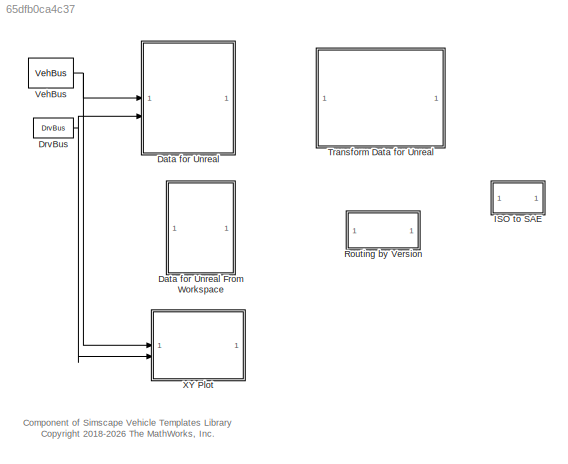
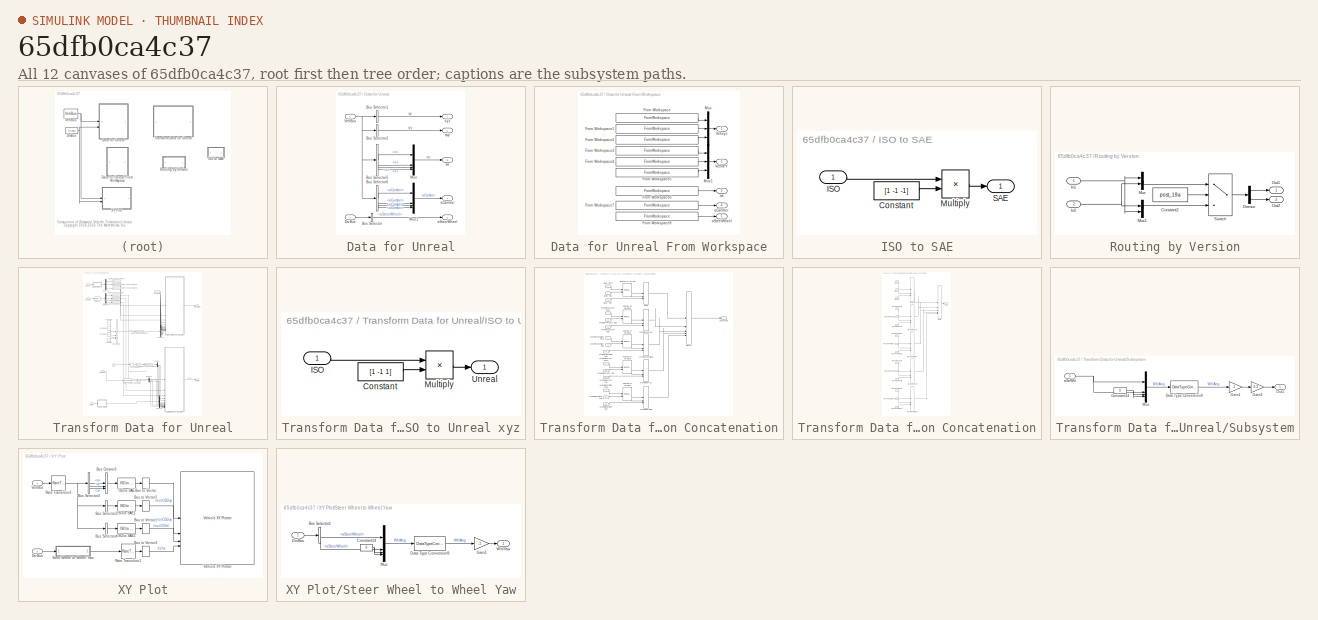
[diagram: thumbnail index - all 12 canvases of the model, root first then tree order]
MODEL slx_65dfb0ca4c37
KIND library
CONFIG SolverName = VariableStepAuto
BLOCK [SubSystem] Data for Unreal
BLOCK [SubSystem] Data for Unreal From Workspace
BLOCK [FromWorkspace] Data for Unreal From Workspace/From Workspace
  VariableName = unreal_data.Values.xyz.x
BLOCK [FromWorkspace] Data for Unreal From Workspace/From Workspace1
  VariableName = unreal_data.Values.xyz.y
BLOCK [FromWorkspace] Data for Unreal From Workspace/From Workspace2
  VariableName = unreal_data.Values.xyz.z
BLOCK [FromWorkspace] Data for Unreal From Workspace/From Workspace3
  VariableName = unreal_data.Values.rpy.aRoll
BLOCK [FromWorkspace] Data for Unreal From Workspace/From Workspace4
  VariableName = unreal_data.Values.rpy.aPitch
BLOCK [FromWorkspace] Data for Unreal From Workspace/From Workspace5
  VariableName = [unreal_data.Values.rpy.aYaw.Time unwrap(unreal_data.Values.rpy.aYaw.Data)]
BLOCK [FromWorkspace] Data for Unreal From Workspace/From Workspace6
  VariableName = unreal_data.Values.ws
BLOCK [FromWorkspace] Data for Unreal From Workspace/From Workspace7
  VariableName = unreal_data.Values.aCamber
BLOCK [FromWorkspace] Data for Unreal From Workspace/From Workspace8
  VariableName = unreal_data.Values.aSteerWheel
BLOCK [Mux] Data for Unreal From Workspace/Mux
  DisplayOption = bar
  Inputs = 3
BLOCK [Mux] Data for Unreal From Workspace/Mux1
  DisplayOption = bar
  Inputs = 3
BLOCK [Outport] Data for Unreal From Workspace/VehRPY
  Port = 2
  VectorParamsAs1DForOutWhenUnconnected = off
BLOCK [Outport] Data for Unreal From Workspace/Vehxyz
  VectorParamsAs1DForOutWhenUnconnected = off
BLOCK [Outport] Data for Unreal From Workspace/aCamber
  Port = 4
  VectorParamsAs1DForOutWhenUnconnected = off
BLOCK [Outport] Data for Unreal From Workspace/aSteerWheel
  Port = 5
  VectorParamsAs1DForOutWhenUnconnected = off
BLOCK [Outport] Data for Unreal From Workspace/ws
  Port = 3
  VectorParamsAs1DForOutWhenUnconnected = off
BLOCK [BusSelector] Data for Unreal/Bus Selector
  OutputSignals = aSteerWheel
BLOCK [BusSelector] Data for Unreal/Bus Selector1
  OutputAsBus = on
  OutputSignals = World.x,World.y,World.z
BLOCK [BusSelector] Data for Unreal/Bus Selector2
  OutputAsBus = on
  OutputSignals = World.aRoll,World.aPitch,World.aYaw
BLOCK [BusSelector] Data for Unreal/Bus Selector5
  OutputSignals = Chassis.WhlL1.n,Chassis.WhlR1.n,Chassis.WhlL2.n,Chassis.WhlR2.n
BLOCK [BusSelector] Data for Unreal/Bus Selector6
  OutputSignals = Chassis.WhlL1.aCamber,Chassis.WhlR1.aCamber,Chassis.WhlL2.aCamber,Chassis.WhlR2.aCamber
BLOCK [Inport] Data for Unreal/DrvBus
  Port = 2
BLOCK [Mux] Data for Unreal/Mux
  DisplayOption = bar
BLOCK [Mux] Data for Unreal/Mux1
  DisplayOption = bar
BLOCK [Inport] Data for Unreal/VehBus
BLOCK [Outport] Data for Unreal/aCamber
  Port = 4
  VectorParamsAs1DForOutWhenUnconnected = off
BLOCK [Outport] Data for Unreal/aSteerWheel
  Port = 5
  VectorParamsAs1DForOutWhenUnconnected = off
BLOCK [Outport] Data for Unreal/rpy
  Port = 2
  VectorParamsAs1DForOutWhenUnconnected = off
BLOCK [Outport] Data for Unreal/ws
  Port = 3
  VectorParamsAs1DForOutWhenUnconnected = off
BLOCK [Outport] Data for Unreal/xyz
  VectorParamsAs1DForOutWhenUnconnected = off
BLOCK [Reference] DrvBus  REF=sm_car_lib/Inputs/DrvBus  (lib defined in slx_05426f0848b6, slx_5dc2867fb1c9)
  SourceBlock = sm_car_lib/Inputs/DrvBus
  SourceType = SubSystem
BLOCK [SubSystem] ISO to SAE
BLOCK [Constant] ISO to SAE/Constant
  Value = [1 -1 -1]
BLOCK [Inport] ISO to SAE/ISO
BLOCK [Product] ISO to SAE/Multiply
BLOCK [Outport] ISO to SAE/SAE
  VectorParamsAs1DForOutWhenUnconnected = off
BLOCK [SubSystem] Routing by Version
BLOCK [Constant] Routing by Version/Constant2
  Value = post_19a
BLOCK [Demux] Routing by Version/Demux
  Outputs = 2
BLOCK [Inport] Routing by Version/In1
BLOCK [Inport] Routing by Version/In2
  Port = 2
BLOCK [Mux] Routing by Version/Mux
  DisplayOption = bar
  Inputs = 2
BLOCK [Mux] Routing by Version/Mux1
  DisplayOption = bar
  Inputs = 2
BLOCK [Outport] Routing by Version/Out1
  VectorParamsAs1DForOutWhenUnconnected = off
BLOCK [Outport] Routing by Version/Out2
  Port = 2
  VectorParamsAs1DForOutWhenUnconnected = off
BLOCK [Switch] Routing by Version/Switch
  Criteria = u2 > Threshold
  InputSameDT = off
  SaturateOnIntegerOverflow = off
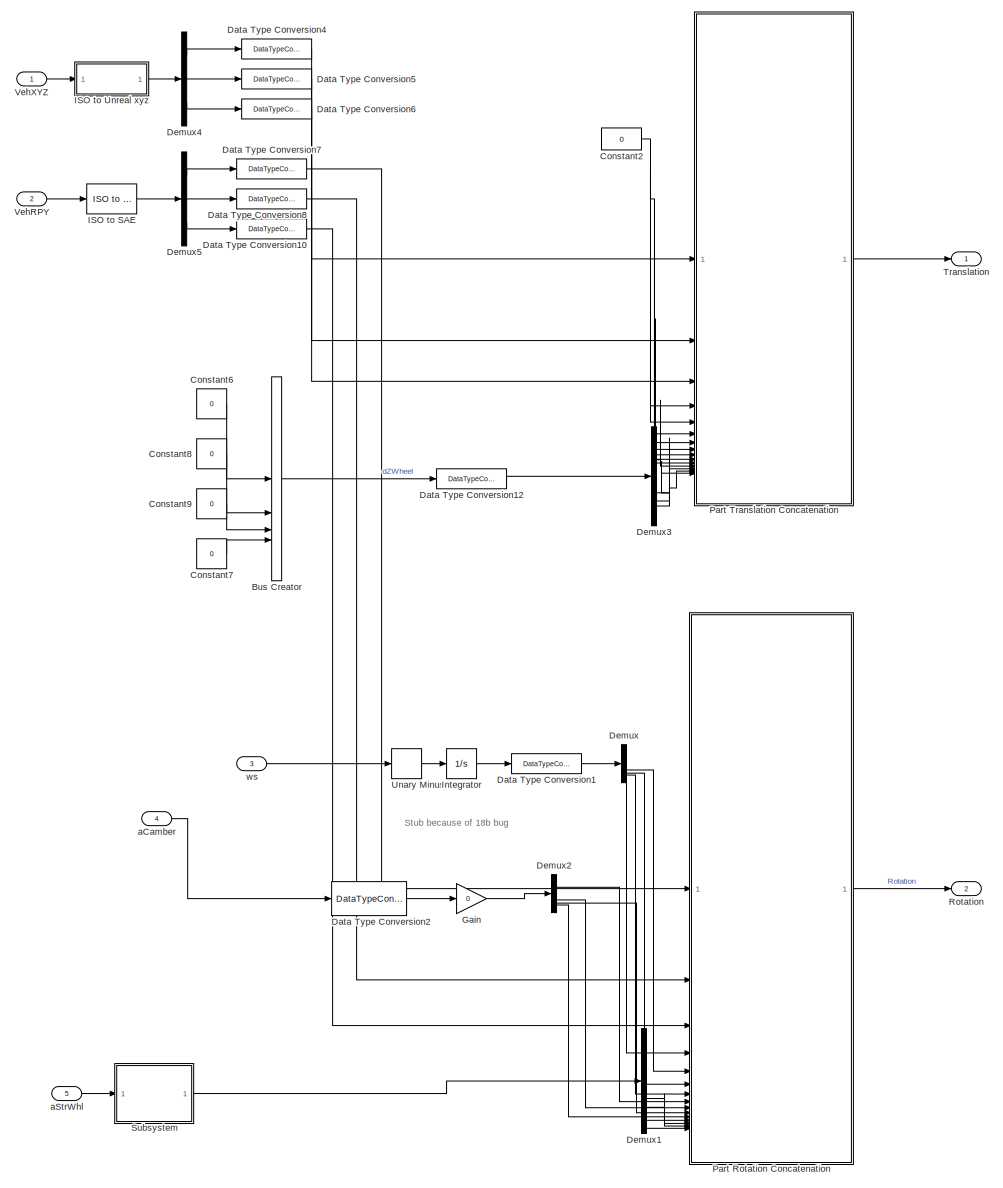
[diagram: Transform Data for Unreal - part 1/1, most of the canvas]
BLOCK [SubSystem] Transform Data for Unreal
BLOCK [BusCreator] Transform Data for Unreal/Bus Creator
  DisplayOption = bar
  InheritFromInputs = on
  Inputs = 4
BLOCK [Constant] Transform Data for Unreal/Constant2
  OutDataTypeStr = single
  Value = 0
BLOCK [Constant] Transform Data for Unreal/Constant6
  Value = 0
BLOCK [Constant] Transform Data for Unreal/Constant7
  Value = 0
BLOCK [Constant] Transform Data for Unreal/Constant8
  Value = 0
BLOCK [Constant] Transform Data for Unreal/Constant9
  Value = 0
BLOCK [DataTypeConversion] Transform Data for Unreal/Data Type Conversion1
  OutDataTypeStr = single
  RndMeth = Floor
  SaturateOnIntegerOverflow = off
BLOCK [DataTypeConversion] Transform Data for Unreal/Data Type Conversion10
  OutDataTypeStr = single
  RndMeth = Floor
  SaturateOnIntegerOverflow = off
BLOCK [DataTypeConversion] Transform Data for Unreal/Data Type Conversion12
  OutDataTypeStr = single
  RndMeth = Floor
  SaturateOnIntegerOverflow = off
BLOCK [DataTypeConversion] Transform Data for Unreal/Data Type Conversion2
  OutDataTypeStr = single
  RndMeth = Floor
  SaturateOnIntegerOverflow = off
BLOCK [DataTypeConversion] Transform Data for Unreal/Data Type Conversion4
  OutDataTypeStr = single
  RndMeth = Floor
  SaturateOnIntegerOverflow = off
BLOCK [DataTypeConversion] Transform Data for Unreal/Data Type Conversion5
  OutDataTypeStr = single
  RndMeth = Floor
  SaturateOnIntegerOverflow = off
BLOCK [DataTypeConversion] Transform Data for Unreal/Data Type Conversion6
  OutDataTypeStr = single
  RndMeth = Floor
  SaturateOnIntegerOverflow = off
BLOCK [DataTypeConversion] Transform Data for Unreal/Data Type Conversion7
  OutDataTypeStr = single
  RndMeth = Floor
  SaturateOnIntegerOverflow = off
BLOCK [DataTypeConversion] Transform Data for Unreal/Data Type Conversion8
  OutDataTypeStr = single
  RndMeth = Floor
  SaturateOnIntegerOverflow = off
BLOCK [Demux] Transform Data for Unreal/Demux
BLOCK [Demux] Transform Data for Unreal/Demux1
BLOCK [Demux] Transform Data for Unreal/Demux2
BLOCK [Demux] Transform Data for Unreal/Demux3
BLOCK [Demux] Transform Data for Unreal/Demux4
  Outputs = 3
BLOCK [Demux] Transform Data for Unreal/Demux5
  Outputs = 3
BLOCK [Gain] Transform Data for Unreal/Gain
  Gain = 0
BLOCK [Reference] Transform Data for Unreal/ISO to SAE   REF=$bdroot/ISO to SAE
  SourceBlock = $bdroot/ISO to SAE
  SourceType = SubSystem
BLOCK [SubSystem] Transform Data for Unreal/ISO to Unreal xyz
BLOCK [Constant] Transform Data for Unreal/ISO to Unreal xyz/Constant
  Value = [1 -1 1]
BLOCK [Inport] Transform Data for Unreal/ISO to Unreal xyz/ISO
BLOCK [Product] Transform Data for Unreal/ISO to Unreal xyz/Multiply
BLOCK [Outport] Transform Data for Unreal/ISO to Unreal xyz/Unreal
  VectorParamsAs1DForOutWhenUnconnected = off
BLOCK [Integrator] Transform Data for Unreal/Integrator
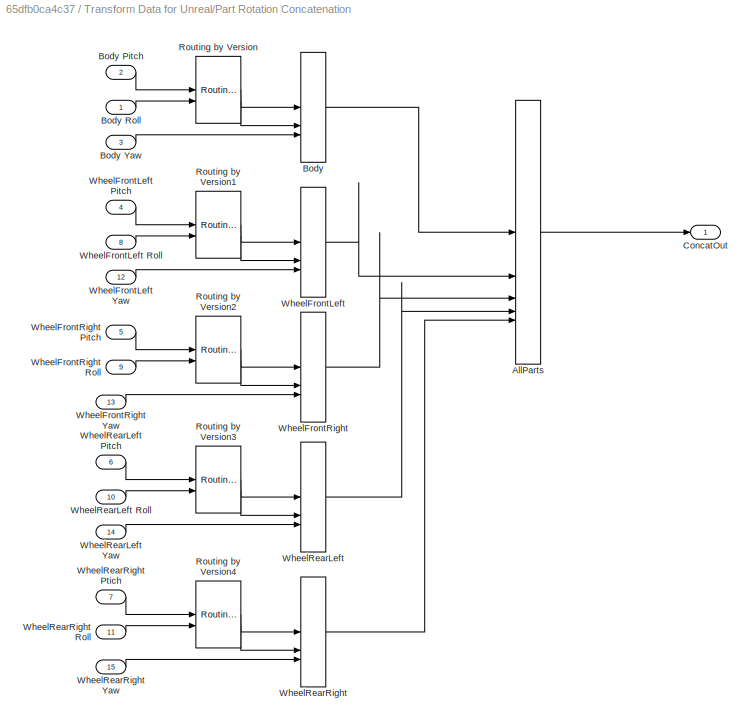
BLOCK [SubSystem] Transform Data for Unreal/Part Rotation Concatenation
BLOCK [Concatenate] Transform Data for Unreal/Part Rotation Concatenation/AllParts
  Mode = Multidimensional array
  NumInputs = 5
BLOCK [Concatenate] Transform Data for Unreal/Part Rotation Concatenation/Body
  ConcatenateDimension = 2
  Mode = Multidimensional array
  NumInputs = 3
BLOCK [Inport] Transform Data for Unreal/Part Rotation Concatenation/Body Pitch
  Port = 2
BLOCK [Inport] Transform Data for Unreal/Part Rotation Concatenation/Body Roll
BLOCK [Inport] Transform Data for Unreal/Part Rotation Concatenation/Body Yaw
  Port = 3
BLOCK [Outport] Transform Data for Unreal/Part Rotation Concatenation/ConcatOut
  VectorParamsAs1DForOutWhenUnconnected = off
BLOCK [Reference] Transform Data for Unreal/Part Rotation Concatenation/Routing by Version  REF=$bdroot/Routing by Version
  SourceBlock = $bdroot/Routing by Version
  SourceType = Swap Inputs based on MATLAB Release
BLOCK [Reference] Transform Data for Unreal/Part Rotation Concatenation/Routing by Version1  REF=$bdroot/Routing by Version
  SourceBlock = $bdroot/Routing by Version
  SourceType = Swap Inputs based on MATLAB Release
BLOCK [Reference] Transform Data for Unreal/Part Rotation Concatenation/Routing by Version2  REF=$bdroot/Routing by Version
  SourceBlock = $bdroot/Routing by Version
  SourceType = Swap Inputs based on MATLAB Release
BLOCK [Reference] Transform Data for Unreal/Part Rotation Concatenation/Routing by Version3  REF=$bdroot/Routing by Version
  SourceBlock = $bdroot/Routing by Version
  SourceType = Swap Inputs based on MATLAB Release
BLOCK [Reference] Transform Data for Unreal/Part Rotation Concatenation/Routing by Version4  REF=$bdroot/Routing by Version
  SourceBlock = $bdroot/Routing by Version
  SourceType = Swap Inputs based on MATLAB Release
BLOCK [Concatenate] Transform Data for Unreal/Part Rotation Concatenation/WheelFrontLeft
  ConcatenateDimension = 2
  Mode = Multidimensional array
  NumInputs = 3
BLOCK [Inport] Transform Data for Unreal/Part Rotation Concatenation/WheelFrontLeft Pitch
  Port = 4
BLOCK [Inport] Transform Data for Unreal/Part Rotation Concatenation/WheelFrontLeft Roll
  Port = 8
BLOCK [Inport] Transform Data for Unreal/Part Rotation Concatenation/WheelFrontLeft Yaw
  Port = 12
BLOCK [Concatenate] Transform Data for Unreal/Part Rotation Concatenation/WheelFrontRight
  ConcatenateDimension = 2
  Mode = Multidimensional array
  NumInputs = 3
BLOCK [Inport] Transform Data for Unreal/Part Rotation Concatenation/WheelFrontRight Pitch
  Port = 5
BLOCK [Inport] Transform Data for Unreal/Part Rotation Concatenation/WheelFrontRight Roll
  Port = 9
BLOCK [Inport] Transform Data for Unreal/Part Rotation Concatenation/WheelFrontRight Yaw
  Port = 13
BLOCK [Concatenate] Transform Data for Unreal/Part Rotation Concatenation/WheelRearLeft
  ConcatenateDimension = 2
  Mode = Multidimensional array
  NumInputs = 3
BLOCK [Inport] Transform Data for Unreal/Part Rotation Concatenation/WheelRearLeft Pitch
  Port = 6
BLOCK [Inport] Transform Data for Unreal/Part Rotation Concatenation/WheelRearLeft Roll
  Port = 10
BLOCK [Inport] Transform Data for Unreal/Part Rotation Concatenation/WheelRearLeft Yaw
  Port = 14
BLOCK [Concatenate] Transform Data for Unreal/Part Rotation Concatenation/WheelRearRight
  ConcatenateDimension = 2
  Mode = Multidimensional array
  NumInputs = 3
BLOCK [Inport] Transform Data for Unreal/Part Rotation Concatenation/WheelRearRight Ptich
  Port = 7
BLOCK [Inport] Transform Data for Unreal/Part Rotation Concatenation/WheelRearRight Roll
  Port = 11
BLOCK [Inport] Transform Data for Unreal/Part Rotation Concatenation/WheelRearRight Yaw
  Port = 15
BLOCK [SubSystem] Transform Data for Unreal/Part Translation Concatenation
BLOCK [Concatenate] Transform Data for Unreal/Part Translation Concatenation/AllParts
  Mode = Multidimensional array
  NumInputs = 5
BLOCK [Concatenate] Transform Data for Unreal/Part Translation Concatenation/Body
  ConcatenateDimension = 2
  Mode = Multidimensional array
  NumInputs = 3
BLOCK [Inport] Transform Data for Unreal/Part Translation Concatenation/BodyX
BLOCK [Inport] Transform Data for Unreal/Part Translation Concatenation/BodyY
  Port = 2
BLOCK [Inport] Transform Data for Unreal/Part Translation Concatenation/BodyZ
  Port = 3
BLOCK [Outport] Transform Data for Unreal/Part Translation Concatenation/Out1
  VectorParamsAs1DForOutWhenUnconnected = off
BLOCK [Concatenate] Transform Data for Unreal/Part Translation Concatenation/WheelFrontLeft
  ConcatenateDimension = 2
  Mode = Multidimensional array
  NumInputs = 3
BLOCK [Inport] Transform Data for Unreal/Part Translation Concatenation/WheelFrontLeftX
  Port = 4
BLOCK [Inport] Transform Data for Unreal/Part Translation Concatenation/WheelFrontLeftY
  Port = 8
BLOCK [Inport] Transform Data for Unreal/Part Translation Concatenation/WheelFrontLeftZ
  Port = 12
BLOCK [Concatenate] Transform Data for Unreal/Part Translation Concatenation/WheelFrontRight
  ConcatenateDimension = 2
  Mode = Multidimensional array
  NumInputs = 3
BLOCK [Inport] Transform Data for Unreal/Part Translation Concatenation/WheelFrontRightX
  Port = 5
BLOCK [Inport] Transform Data for Unreal/Part Translation Concatenation/WheelFrontRightY
  Port = 9
BLOCK [Inport] Transform Data for Unreal/Part Translation Concatenation/WheelFrontRightZ
  Port = 13
BLOCK [Concatenate] Transform Data for Unreal/Part Translation Concatenation/WheelRearLeft
  ConcatenateDimension = 2
  Mode = Multidimensional array
  NumInputs = 3
BLOCK [Inport] Transform Data for Unreal/Part Translation Concatenation/WheelRearLeftX
  Port = 6
BLOCK [Inport] Transform Data for Unreal/Part Translation Concatenation/WheelRearLeftY
  Port = 10
BLOCK [Inport] Transform Data for Unreal/Part Translation Concatenation/WheelRearLeftZ
  Port = 14
BLOCK [Concatenate] Transform Data for Unreal/Part Translation Concatenation/WheelRearRight
  ConcatenateDimension = 2
  Mode = Multidimensional array
  NumInputs = 3
BLOCK [Inport] Transform Data for Unreal/Part Translation Concatenation/WheelRearRightX
  Port = 7
BLOCK [Inport] Transform Data for Unreal/Part Translation Concatenation/WheelRearRightY
  Port = 11
BLOCK [Inport] Transform Data for Unreal/Part Translation Concatenation/WheelRearRightZ
  Port = 15
BLOCK [Outport] Transform Data for Unreal/Rotation
  Port = 2
  VectorParamsAs1DForOutWhenUnconnected = off
BLOCK [SubSystem] Transform Data for Unreal/Subsystem
BLOCK [Constant] Transform Data for Unreal/Subsystem/Constant14
  Value = 0
BLOCK [DataTypeConversion] Transform Data for Unreal/Subsystem/Data Type Conversion9
  OutDataTypeStr = single
  RndMeth = Floor
  SaturateOnIntegerOverflow = off
BLOCK [Gain] Transform Data for Unreal/Subsystem/Gain1
  Gain = -1
BLOCK [Gain] Transform Data for Unreal/Subsystem/Gain2
  Gain = 0.2
BLOCK [Mux] Transform Data for Unreal/Subsystem/Mux
  DisplayOption = bar
BLOCK [Outport] Transform Data for Unreal/Subsystem/Out1
  VectorParamsAs1DForOutWhenUnconnected = off
BLOCK [Inport] Transform Data for Unreal/Subsystem/aStrWhl
BLOCK [Outport] Transform Data for Unreal/Translation
  VectorParamsAs1DForOutWhenUnconnected = off
BLOCK [UnaryMinus] Transform Data for Unreal/Unary Minus
BLOCK [Inport] Transform Data for Unreal/VehRPY
  Port = 2
BLOCK [Inport] Transform Data for Unreal/VehXYZ
BLOCK [Inport] Transform Data for Unreal/aCamber
  Port = 4
BLOCK [Inport] Transform Data for Unreal/aStrWhl
  Port = 5
BLOCK [Inport] Transform Data for Unreal/ws
  Port = 3
BLOCK [Reference] VehBus  REF=sm_car_lib/Outputs/VehBus  (lib defined in slx_05426f0848b6, slx_5dc2867fb1c9)
  SourceBlock = sm_car_lib/Outputs/VehBus
  SourceType = SubSystem
BLOCK [SubSystem] XY Plot
BLOCK [BusCreator] XY Plot/Bus Creator3
  DisplayOption = bar
  InheritFromInputs = on
  Inputs = 3
BLOCK [BusSelector] XY Plot/Bus Selector2
  OutputAsBus = on
  OutputSignals = World.aRoll,World.aPitch,World.aYaw
BLOCK [BusSelector] XY Plot/Bus Selector3
  OutputSignals = World.x,World.y,World.z
BLOCK [BusSelector] XY Plot/Bus Selector4
  OutputAsBus = on
  OutputSignals = World.vx,World.vy,World.vz
BLOCK [BusToVector] XY Plot/Bus to Vector
BLOCK [BusToVector] XY Plot/Bus to Vector1
BLOCK [BusToVector] XY Plot/Bus to Vector2
BLOCK [BusToVector] XY Plot/Bus to Vector3
BLOCK [Inport] XY Plot/DrvBus
  Port = 2
BLOCK [Reference] XY Plot/ISO to SAE  REF=$bdroot/ISO to SAE
  SourceBlock = $bdroot/ISO to SAE
  SourceType = SubSystem
BLOCK [Reference] XY Plot/ISO to SAE1  REF=$bdroot/ISO to SAE
  SourceBlock = $bdroot/ISO to SAE
  SourceType = SubSystem
BLOCK [Reference] XY Plot/ISO to SAE2  REF=$bdroot/ISO to SAE
  SourceBlock = $bdroot/ISO to SAE
  SourceType = SubSystem
BLOCK [RateTransition] XY Plot/Rate Transition1
  Deterministic = off
  OutPortSampleTime = 0.1
BLOCK [RateTransition] XY Plot/Rate Transition2
  Deterministic = off
  OutPortSampleTime = 0.1
BLOCK [SubSystem] XY Plot/Steer Wheel to Wheel Yaw
BLOCK [BusSelector] XY Plot/Steer Wheel to Wheel Yaw/Bus Selector1
  OutputSignals = aSteerWheel,aSteerWheel
BLOCK [Constant] XY Plot/Steer Wheel to Wheel Yaw/Constant14
  Value = 0
BLOCK [DataTypeConversion] XY Plot/Steer Wheel to Wheel Yaw/Data Type Conversion9
  OutDataTypeStr = single
  RndMeth = Floor
  SaturateOnIntegerOverflow = off
BLOCK [Inport] XY Plot/Steer Wheel to Wheel Yaw/DrvBus
BLOCK [Gain] XY Plot/Steer Wheel to Wheel Yaw/Gain1
  Gain = -1
BLOCK [Mux] XY Plot/Steer Wheel to Wheel Yaw/Mux
  DisplayOption = bar
BLOCK [Outport] XY Plot/Steer Wheel to Wheel Yaw/WhlYaw
  VectorParamsAs1DForOutWhenUnconnected = off
BLOCK [Inport] XY Plot/VehBus
BLOCK [Reference] XY Plot/Vehicle XY Plotter  REF=vehdynlibviscommon/Vehicle XY Plotter
  SourceBlock = vehdynlibviscommon/Vehicle XY Plotter
  SourceType = Vehicle XY Plotter
ANNOTATION (root): Component of Simscape Vehicle Templates Library <copyright redacted>
ANNOTATION Transform Data for Unreal: Stub because of 18b bug
LINE Data for Unreal From Workspace/From Workspace1:1 -> Data for Unreal From Workspace/Mux:2
LINE Data for Unreal From Workspace/From Workspace2:1 -> Data for Unreal From Workspace/Mux:3
LINE Data for Unreal From Workspace/From Workspace3:1 -> Data for Unreal From Workspace/Mux1:1
LINE Data for Unreal From Workspace/From Workspace4:1 -> Data for Unreal From Workspace/Mux1:2
LINE Data for Unreal From Workspace/From Workspace5:1 -> Data for Unreal From Workspace/Mux1:3
LINE Data for Unreal From Workspace/From Workspace6:1 -> Data for Unreal From Workspace/ws:1
LINE Data for Unreal From Workspace/From Workspace7:1 -> Data for Unreal From Workspace/aCamber:1
LINE Data for Unreal From Workspace/From Workspace8:1 -> Data for Unreal From Workspace/aSteerWheel:1
LINE Data for Unreal From Workspace/From Workspace:1 -> Data for Unreal From Workspace/Mux:1
LINE Data for Unreal From Workspace/Mux1:1 -> Data for Unreal From Workspace/VehRPY:1
LINE Data for Unreal From Workspace/Mux:1 -> Data for Unreal From Workspace/Vehxyz:1
LINE Data for Unreal/Bus Selector1:1 -> Data for Unreal/xyz:1
LINE Data for Unreal/Bus Selector2:1 -> Data for Unreal/rpy:1
LINE Data for Unreal/Bus Selector5:1 -> Data for Unreal/Mux:1
LINE Data for Unreal/Bus Selector5:2 -> Data for Unreal/Mux:2
LINE Data for Unreal/Bus Selector5:3 -> Data for Unreal/Mux:3
LINE Data for Unreal/Bus Selector5:4 -> Data for Unreal/Mux:4
LINE Data for Unreal/Bus Selector6:1 -> Data for Unreal/Mux1:1
LINE Data for Unreal/Bus Selector6:2 -> Data for Unreal/Mux1:2
LINE Data for Unreal/Bus Selector6:3 -> Data for Unreal/Mux1:3
LINE Data for Unreal/Bus Selector6:4 -> Data for Unreal/Mux1:4
LINE Data for Unreal/Bus Selector:1 -> Data for Unreal/aSteerWheel:1
LINE Data for Unreal/DrvBus:1 -> Data for Unreal/Bus Selector:1
LINE Data for Unreal/Mux1:1 -> Data for Unreal/aCamber:1
LINE Data for Unreal/Mux:1 -> Data for Unreal/ws:1
NET Data for Unreal/VehBus:1 -> Data for Unreal/Bus Selector1:1, Data for Unreal/Bus Selector2:1, Data for Unreal/Bus Selector5:1, Data for Unreal/Bus Selector6:1
NET DrvBus:1 -> Data for Unreal:2, XY Plot:2
LINE ISO to SAE/Constant:1 -> ISO to SAE/Multiply:2
LINE ISO to SAE/ISO:1 -> ISO to SAE/Multiply:1
LINE ISO to SAE/Multiply:1 -> ISO to SAE/SAE:1
LINE Transform Data for Unreal/Bus Creator:1 -> Transform Data for Unreal/Data Type Conversion12:1
NET Transform Data for Unreal/Constant2:1 -> Transform Data for Unreal/Part Translation Concatenation:10, Transform Data for Unreal/Part Translation Concatenation:11, Transform Data for Unreal/Part Translation Concatenation:4, Transform Data for Unreal/Part Translation Concatenation:5, Transform Data for Unreal/Part Translation Concatenation:6, Transform Data for Unreal/Part Translation Concatenation:7, Transform Data for Unreal/Part Translation Concatenation:8, Transform Data for Unreal/Part Translation Concatenation:9
LINE Transform Data for Unreal/Constant6:1 -> Transform Data for Unreal/Bus Creator:1
LINE Transform Data for Unreal/Constant7:1 -> Transform Data for Unreal/Bus Creator:4
LINE Transform Data for Unreal/Constant8:1 -> Transform Data for Unreal/Bus Creator:2
LINE Transform Data for Unreal/Constant9:1 -> Transform Data for Unreal/Bus Creator:3
LINE Transform Data for Unreal/Data Type Conversion10:1 -> Transform Data for Unreal/Part Rotation Concatenation:3
LINE Transform Data for Unreal/Data Type Conversion12:1 -> Transform Data for Unreal/Demux3:1
LINE Transform Data for Unreal/Data Type Conversion1:1 -> Transform Data for Unreal/Demux:1
LINE Transform Data for Unreal/Data Type Conversion2:1 -> Transform Data for Unreal/Gain:1
LINE Transform Data for Unreal/Data Type Conversion4:1 -> Transform Data for Unreal/Part Translation Concatenation:1
LINE Transform Data for Unreal/Data Type Conversion5:1 -> Transform Data for Unreal/Part Translation Concatenation:2
LINE Transform Data for Unreal/Data Type Conversion6:1 -> Transform Data for Unreal/Part Translation Concatenation:3
LINE Transform Data for Unreal/Data Type Conversion7:1 -> Transform Data for Unreal/Part Rotation Concatenation:1
LINE Transform Data for Unreal/Data Type Conversion8:1 -> Transform Data for Unreal/Part Rotation Concatenation:2
LINE Transform Data for Unreal/Demux1:1 -> Transform Data for Unreal/Part Rotation Concatenation:12
LINE Transform Data for Unreal/Demux1:2 -> Transform Data for Unreal/Part Rotation Concatenation:13
LINE Transform Data for Unreal/Demux1:3 -> Transform Data for Unreal/Part Rotation Concatenation:14
LINE Transform Data for Unreal/Demux1:4 -> Transform Data for Unreal/Part Rotation Concatenation:15
LINE Transform Data for Unreal/Demux2:1 -> Transform Data for Unreal/Part Rotation Concatenation:8
LINE Transform Data for Unreal/Demux2:2 -> Transform Data for Unreal/Part Rotation Concatenation:9
LINE Transform Data for Unreal/Demux2:3 -> Transform Data for Unreal/Part Rotation Concatenation:10
LINE Transform Data for Unreal/Demux2:4 -> Transform Data for Unreal/Part Rotation Concatenation:11
LINE Transform Data for Unreal/Demux3:1 -> Transform Data for Unreal/Part Translation Concatenation:12
LINE Transform Data for Unreal/Demux3:2 -> Transform Data for Unreal/Part Translation Concatenation:13
LINE Transform Data for Unreal/Demux3:3 -> Transform Data for Unreal/Part Translation Concatenation:14
LINE Transform Data for Unreal/Demux3:4 -> Transform Data for Unreal/Part Translation Concatenation:15
LINE Transform Data for Unreal/Demux4:1 -> Transform Data for Unreal/Data Type Conversion4:1
LINE Transform Data for Unreal/Demux4:2 -> Transform Data for Unreal/Data Type Conversion5:1
LINE Transform Data for Unreal/Demux4:3 -> Transform Data for Unreal/Data Type Conversion6:1
LINE Transform Data for Unreal/Demux5:1 -> Transform Data for Unreal/Data Type Conversion7:1
LINE Transform Data for Unreal/Demux5:2 -> Transform Data for Unreal/Data Type Conversion8:1
LINE Transform Data for Unreal/Demux5:3 -> Transform Data for Unreal/Data Type Conversion10:1
LINE Transform Data for Unreal/Demux:1 -> Transform Data for Unreal/Part Rotation Concatenation:4
LINE Transform Data for Unreal/Demux:2 -> Transform Data for Unreal/Part Rotation Concatenation:5
LINE Transform Data for Unreal/Demux:3 -> Transform Data for Unreal/Part Rotation Concatenation:6
LINE Transform Data for Unreal/Demux:4 -> Transform Data for Unreal/Part Rotation Concatenation:7
LINE Transform Data for Unreal/Gain:1 -> Transform Data for Unreal/Demux2:1
LINE Transform Data for Unreal/ISO to SAE :1 -> Transform Data for Unreal/Demux5:1
LINE Transform Data for Unreal/ISO to Unreal xyz/Constant:1 -> Transform Data for Unreal/ISO to Unreal xyz/Multiply:2
LINE Transform Data for Unreal/ISO to Unreal xyz/ISO:1 -> Transform Data for Unreal/ISO to Unreal xyz/Multiply:1
LINE Transform Data for Unreal/ISO to Unreal xyz/Multiply:1 -> Transform Data for Unreal/ISO to Unreal xyz/Unreal:1
LINE Transform Data for Unreal/ISO to Unreal xyz:1 -> Transform Data for Unreal/Demux4:1
LINE Transform Data for Unreal/Integrator:1 -> Transform Data for Unreal/Data Type Conversion1:1
LINE Transform Data for Unreal/Part Rotation Concatenation/AllParts:1 -> Transform Data for Unreal/Part Rotation Concatenation/ConcatOut:1
LINE Transform Data for Unreal/Part Rotation Concatenation/Body Pitch:1 -> Transform Data for Unreal/Part Rotation Concatenation/Routing by Version:1
LINE Transform Data for Unreal/Part Rotation Concatenation/Body Roll:1 -> Transform Data for Unreal/Part Rotation Concatenation/Routing by Version:2
LINE Transform Data for Unreal/Part Rotation Concatenation/Body Yaw:1 -> Transform Data for Unreal/Part Rotation Concatenation/Body:3
LINE Transform Data for Unreal/Part Rotation Concatenation/Body:1 -> Transform Data for Unreal/Part Rotation Concatenation/AllParts:1
LINE Transform Data for Unreal/Part Rotation Concatenation/Routing by Version1:1 -> Transform Data for Unreal/Part Rotation Concatenation/WheelFrontLeft:1
LINE Transform Data for Unreal/Part Rotation Concatenation/Routing by Version1:2 -> Transform Data for Unreal/Part Rotation Concatenation/WheelFrontLeft:2
LINE Transform Data for Unreal/Part Rotation Concatenation/Routing by Version2:1 -> Transform Data for Unreal/Part Rotation Concatenation/WheelFrontRight:1
LINE Transform Data for Unreal/Part Rotation Concatenation/Routing by Version2:2 -> Transform Data for Unreal/Part Rotation Concatenation/WheelFrontRight:2
LINE Transform Data for Unreal/Part Rotation Concatenation/Routing by Version3:1 -> Transform Data for Unreal/Part Rotation Concatenation/WheelRearLeft:1
LINE Transform Data for Unreal/Part Rotation Concatenation/Routing by Version3:2 -> Transform Data for Unreal/Part Rotation Concatenation/WheelRearLeft:2
LINE Transform Data for Unreal/Part Rotation Concatenation/Routing by Version4:1 -> Transform Data for Unreal/Part Rotation Concatenation/WheelRearRight:1
LINE Transform Data for Unreal/Part Rotation Concatenation/Routing by Version4:2 -> Transform Data for Unreal/Part Rotation Concatenation/WheelRearRight:2
LINE Transform Data for Unreal/Part Rotation Concatenation/Routing by Version:1 -> Transform Data for Unreal/Part Rotation Concatenation/Body:1
LINE Transform Data for Unreal/Part Rotation Concatenation/Routing by Version:2 -> Transform Data for Unreal/Part Rotation Concatenation/Body:2
LINE Transform Data for Unreal/Part Rotation Concatenation/WheelFrontLeft Pitch:1 -> Transform Data for Unreal/Part Rotation Concatenation/Routing by Version1:1
LINE Transform Data for Unreal/Part Rotation Concatenation/WheelFrontLeft Roll:1 -> Transform Data for Unreal/Part Rotation Concatenation/Routing by Version1:2
LINE Transform Data for Unreal/Part Rotation Concatenation/WheelFrontLeft Yaw:1 -> Transform Data for Unreal/Part Rotation Concatenation/WheelFrontLeft:3
LINE Transform Data for Unreal/Part Rotation Concatenation/WheelFrontLeft:1 -> Transform Data for Unreal/Part Rotation Concatenation/AllParts:2
LINE Transform Data for Unreal/Part Rotation Concatenation/WheelFrontRight Pitch:1 -> Transform Data for Unreal/Part Rotation Concatenation/Routing by Version2:1
LINE Transform Data for Unreal/Part Rotation Concatenation/WheelFrontRight Roll:1 -> Transform Data for Unreal/Part Rotation Concatenation/Routing by Version2:2
LINE Transform Data for Unreal/Part Rotation Concatenation/WheelFrontRight Yaw:1 -> Transform Data for Unreal/Part Rotation Concatenation/WheelFrontRight:3
LINE Transform Data for Unreal/Part Rotation Concatenation/WheelFrontRight:1 -> Transform Data for Unreal/Part Rotation Concatenation/AllParts:3
LINE Transform Data for Unreal/Part Rotation Concatenation/WheelRearLeft Pitch:1 -> Transform Data for Unreal/Part Rotation Concatenation/Routing by Version3:1
LINE Transform Data for Unreal/Part Rotation Concatenation/WheelRearLeft Roll:1 -> Transform Data for Unreal/Part Rotation Concatenation/Routing by Version3:2
LINE Transform Data for Unreal/Part Rotation Concatenation/WheelRearLeft Yaw:1 -> Transform Data for Unreal/Part Rotation Concatenation/WheelRearLeft:3
LINE Transform Data for Unreal/Part Rotation Concatenation/WheelRearLeft:1 -> Transform Data for Unreal/Part Rotation Concatenation/AllParts:4
LINE Transform Data for Unreal/Part Rotation Concatenation/WheelRearRight Ptich:1 -> Transform Data for Unreal/Part Rotation Concatenation/Routing by Version4:1
LINE Transform Data for Unreal/Part Rotation Concatenation/WheelRearRight Roll:1 -> Transform Data for Unreal/Part Rotation Concatenation/Routing by Version4:2
LINE Transform Data for Unreal/Part Rotation Concatenation/WheelRearRight Yaw:1 -> Transform Data for Unreal/Part Rotation Concatenation/WheelRearRight:3
LINE Transform Data for Unreal/Part Rotation Concatenation/WheelRearRight:1 -> Transform Data for Unreal/Part Rotation Concatenation/AllParts:5
LINE Transform Data for Unreal/Part Rotation Concatenation:1 -> Transform Data for Unreal/Rotation:1
LINE Transform Data for Unreal/Part Translation Concatenation/AllParts:1 -> Transform Data for Unreal/Part Translation Concatenation/Out1:1
LINE Transform Data for Unreal/Part Translation Concatenation/Body:1 -> Transform Data for Unreal/Part Translation Concatenation/AllParts:1
LINE Transform Data for Unreal/Part Translation Concatenation/BodyX:1 -> Transform Data for Unreal/Part Translation Concatenation/Body:1
LINE Transform Data for Unreal/Part Translation Concatenation/BodyY:1 -> Transform Data for Unreal/Part Translation Concatenation/Body:2
LINE Transform Data for Unreal/Part Translation Concatenation/BodyZ:1 -> Transform Data for Unreal/Part Translation Concatenation/Body:3
LINE Transform Data for Unreal/Part Translation Concatenation/WheelFrontLeft:1 -> Transform Data for Unreal/Part Translation Concatenation/AllParts:2
LINE Transform Data for Unreal/Part Translation Concatenation/WheelFrontLeftX:1 -> Transform Data for Unreal/Part Translation Concatenation/WheelFrontLeft:1
LINE Transform Data for Unreal/Part Translation Concatenation/WheelFrontLeftY:1 -> Transform Data for Unreal/Part Translation Concatenation/WheelFrontLeft:2
LINE Transform Data for Unreal/Part Translation Concatenation/WheelFrontLeftZ:1 -> Transform Data for Unreal/Part Translation Concatenation/WheelFrontLeft:3
LINE Transform Data for Unreal/Part Translation Concatenation/WheelFrontRight:1 -> Transform Data for Unreal/Part Translation Concatenation/AllParts:3
LINE Transform Data for Unreal/Part Translation Concatenation/WheelFrontRightX:1 -> Transform Data for Unreal/Part Translation Concatenation/WheelFrontRight:1
LINE Transform Data for Unreal/Part Translation Concatenation/WheelFrontRightY:1 -> Transform Data for Unreal/Part Translation Concatenation/WheelFrontRight:2
LINE Transform Data for Unreal/Part Translation Concatenation/WheelFrontRightZ:1 -> Transform Data for Unreal/Part Translation Concatenation/WheelFrontRight:3
LINE Transform Data for Unreal/Part Translation Concatenation/WheelRearLeft:1 -> Transform Data for Unreal/Part Translation Concatenation/AllParts:4
LINE Transform Data for Unreal/Part Translation Concatenation/WheelRearLeftX:1 -> Transform Data for Unreal/Part Translation Concatenation/WheelRearLeft:1
LINE Transform Data for Unreal/Part Translation Concatenation/WheelRearLeftY:1 -> Transform Data for Unreal/Part Translation Concatenation/WheelRearLeft:2
LINE Transform Data for Unreal/Part Translation Concatenation/WheelRearLeftZ:1 -> Transform Data for Unreal/Part Translation Concatenation/WheelRearLeft:3
LINE Transform Data for Unreal/Part Translation Concatenation/WheelRearRight:1 -> Transform Data for Unreal/Part Translation Concatenation/AllParts:5
LINE Transform Data for Unreal/Part Translation Concatenation/WheelRearRightX:1 -> Transform Data for Unreal/Part Translation Concatenation/WheelRearRight:1
LINE Transform Data for Unreal/Part Translation Concatenation/WheelRearRightY:1 -> Transform Data for Unreal/Part Translation Concatenation/WheelRearRight:2
LINE Transform Data for Unreal/Part Translation Concatenation/WheelRearRightZ:1 -> Transform Data for Unreal/Part Translation Concatenation/WheelRearRight:3
LINE Transform Data for Unreal/Part Translation Concatenation:1 -> Transform Data for Unreal/Translation:1
NET Transform Data for Unreal/Subsystem/Constant14:1 -> Transform Data for Unreal/Subsystem/Mux:3, Transform Data for Unreal/Subsystem/Mux:4
LINE Transform Data for Unreal/Subsystem/Data Type Conversion9:1 -> Transform Data for Unreal/Subsystem/Gain1:1
LINE Transform Data for Unreal/Subsystem/Gain1:1 -> Transform Data for Unreal/Subsystem/Gain2:1
LINE Transform Data for Unreal/Subsystem/Gain2:1 -> Transform Data for Unreal/Subsystem/Out1:1
LINE Transform Data for Unreal/Subsystem/Mux:1 -> Transform Data for Unreal/Subsystem/Data Type Conversion9:1
NET Transform Data for Unreal/Subsystem/aStrWhl:1 -> Transform Data for Unreal/Subsystem/Mux:1, Transform Data for Unreal/Subsystem/Mux:2
LINE Transform Data for Unreal/Subsystem:1 -> Transform Data for Unreal/Demux1:1
LINE Transform Data for Unreal/Unary Minus:1 -> Transform Data for Unreal/Integrator:1
LINE Transform Data for Unreal/VehRPY:1 -> Transform Data for Unreal/ISO to SAE :1
LINE Transform Data for Unreal/VehXYZ:1 -> Transform Data for Unreal/ISO to Unreal xyz:1
LINE Transform Data for Unreal/aCamber:1 -> Transform Data for Unreal/Data Type Conversion2:1
LINE Transform Data for Unreal/aStrWhl:1 -> Transform Data for Unreal/Subsystem:1
LINE Transform Data for Unreal/ws:1 -> Transform Data for Unreal/Unary Minus:1
NET VehBus:1 -> Data for Unreal:1, XY Plot:1
LINE XY Plot/Bus Creator3:1 -> XY Plot/ISO to SAE:1
LINE XY Plot/Bus Selector2:1 -> XY Plot/ISO to SAE1:1
LINE XY Plot/Bus Selector3:1 -> XY Plot/Bus Creator3:1
LINE XY Plot/Bus Selector3:2 -> XY Plot/Bus Creator3:2
LINE XY Plot/Bus Selector3:3 -> XY Plot/Bus Creator3:3
LINE XY Plot/Bus Selector4:1 -> XY Plot/ISO to SAE2:1
LINE XY Plot/Bus to Vector1:1 -> XY Plot/Vehicle XY Plotter:3
LINE XY Plot/Bus to Vector2:1 -> XY Plot/Vehicle XY Plotter:2
LINE XY Plot/Bus to Vector3:1 -> XY Plot/Vehicle XY Plotter:4
LINE XY Plot/Bus to Vector:1 -> XY Plot/Vehicle XY Plotter:1
LINE XY Plot/DrvBus:1 -> XY Plot/Steer Wheel to Wheel Yaw:1
LINE XY Plot/ISO to SAE1:1 -> XY Plot/Bus to Vector2:1
LINE XY Plot/ISO to SAE2:1 -> XY Plot/Bus to Vector1:1
LINE XY Plot/ISO to SAE:1 -> XY Plot/Bus to Vector:1
LINE XY Plot/Rate Transition1:1 -> XY Plot/Bus to Vector3:1
NET XY Plot/Rate Transition2:1 -> XY Plot/Bus Selector2:1, XY Plot/Bus Selector3:1, XY Plot/Bus Selector4:1
LINE XY Plot/Steer Wheel to Wheel Yaw/Bus Selector1:1 -> XY Plot/Steer Wheel to Wheel Yaw/Mux:1
LINE XY Plot/Steer Wheel to Wheel Yaw/Bus Selector1:2 -> XY Plot/Steer Wheel to Wheel Yaw/Mux:2
NET XY Plot/Steer Wheel to Wheel Yaw/Constant14:1 -> XY Plot/Steer Wheel to Wheel Yaw/Mux:3, XY Plot/Steer Wheel to Wheel Yaw/Mux:4
LINE XY Plot/Steer Wheel to Wheel Yaw/Data Type Conversion9:1 -> XY Plot/Steer Wheel to Wheel Yaw/Gain1:1
LINE XY Plot/Steer Wheel to Wheel Yaw/DrvBus:1 -> XY Plot/Steer Wheel to Wheel Yaw/Bus Selector1:1
LINE XY Plot/Steer Wheel to Wheel Yaw/Gain1:1 -> XY Plot/Steer Wheel to Wheel Yaw/WhlYaw:1
LINE XY Plot/Steer Wheel to Wheel Yaw/Mux:1 -> XY Plot/Steer Wheel to Wheel Yaw/Data Type Conversion9:1
LINE XY Plot/Steer Wheel to Wheel Yaw:1 -> XY Plot/Rate Transition1:1
LINE XY Plot/VehBus:1 -> XY Plot/Rate Transition2:1
note: NET lines group one-source signal fan-out (src -> all destinations, sorted); 1:1 wires keep LINE
